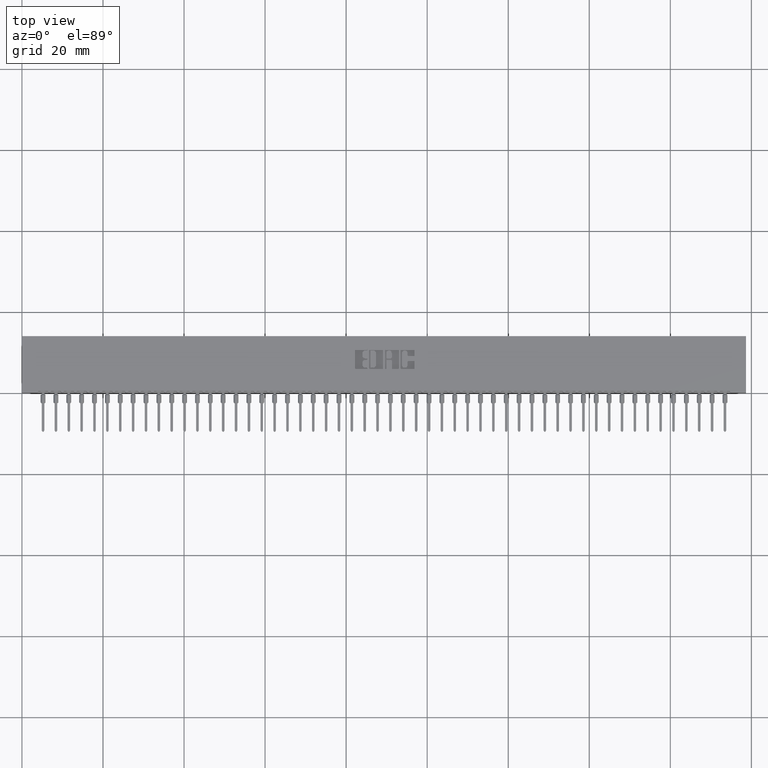
[diagram: clean part render]
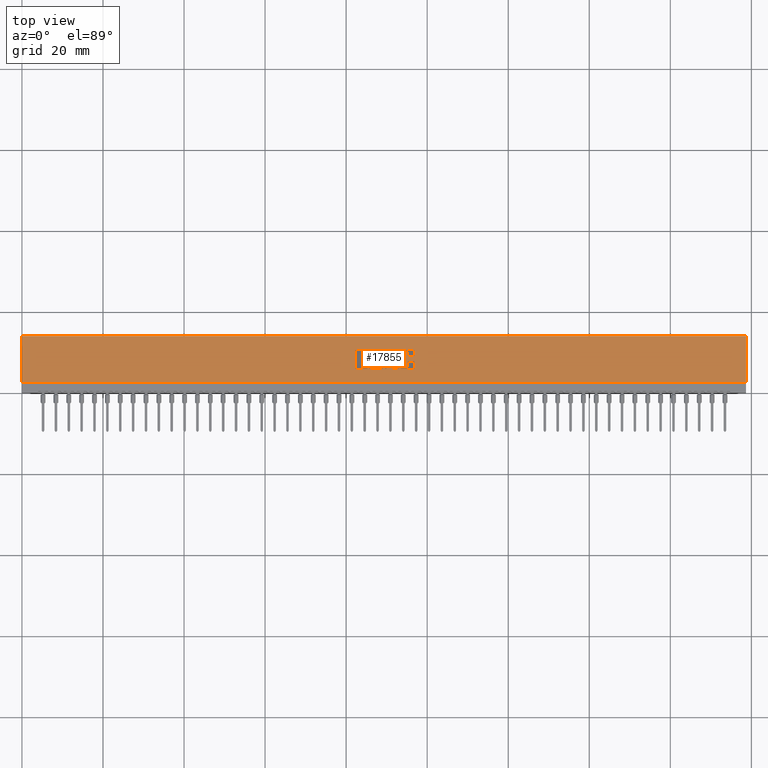
[diagram: same view with one face highlighted and labeled with its STEP entity id]
A machine part, top view. The second image highlights one B-rep face of the part: STEP entity #17855.
In plain terms, the highlighted planar face has unit normal (0, 0, -1).
Its self-contained STEP definition (entity closure, byte-faithful):
#5 = DIRECTION ( 'NONE',  ( 0.0000000000000000000, -1.000000000000000000, 0.0000000000000000000 ) ) ;
#48 = CIRCLE ( 'NONE', #55352, 0.009815670203803066735 ) ;
#378 = EDGE_LOOP ( 'NONE', ( #6448, #70563, #37187, #23038, #22471, #34751, #5128, #17313, #51471, #9866, #34154, #26303, #47491, #44251, #18702, #60147, #46249, #27492, #25547, #27397 ) ) ;
#688 = DIRECTION ( 'NONE',  ( 1.000000000000000000, 0.0000000000000000000, 0.0000000000000000000 ) ) ;
#783 = DIRECTION ( 'NONE',  ( -0.0000000000000000000, 0.0000000000000000000, 1.000000000000000000 ) ) ;
#806 = CARTESIAN_POINT ( 'NONE',  ( 0.0000000000000000000, 0.5500000000000000444, 0.0000000000000000000 ) ) ;
#1036 = CARTESIAN_POINT ( 'NONE',  ( 3.651729290037013520, 0.4231567020380067046, 0.0000000000000000000 ) ) ;
#1077 = ORIENTED_EDGE ( 'NONE', *, *, #31005, .F. ) ;
#1135 = CARTESIAN_POINT ( 'NONE',  ( 3.539830649713646693, 0.0000000000000000000, 0.0000000000000000000 ) ) ;
#1167 = EDGE_CURVE ( 'NONE', #9923, #64089, #6704, .T. ) ;
#1182 = CARTESIAN_POINT ( 'NONE',  ( 3.718721239177998239, 0.2668421540424530947, 0.0000000000000000000 ) ) ;
#1207 = CARTESIAN_POINT ( 'NONE',  ( 3.539830649713646693, 0.2337142671046480435, 0.0000000000000000000 ) ) ;
#1264 = EDGE_CURVE ( 'NONE', #9923, #18157, #38859, .T. ) ;
#1304 = ORIENTED_EDGE ( 'NONE', *, *, #1167, .T. ) ;
#1831 = DIRECTION ( 'NONE',  ( -0.0000000000000000000, 0.0000000000000000000, 1.000000000000000000 ) ) ;
#1995 = ORIENTED_EDGE ( 'NONE', *, *, #63247, .F. ) ;
#2234 = EDGE_CURVE ( 'NONE', #74896, #15088, #69660, .T. ) ;
#2339 = EDGE_CURVE ( 'NONE', #33087, #29295, #22384, .T. ) ;
#2422 = CARTESIAN_POINT ( 'NONE',  ( 3.305726915352909412, 0.3780046191005198564, 0.0000000000000000000 ) ) ;
#2976 = VERTEX_POINT ( 'NONE', #40756 ) ;
#2998 = EDGE_CURVE ( 'NONE', #46242, #23167, #54777, .T. ) ;
#3012 = CARTESIAN_POINT ( 'NONE',  ( 3.350633606535309283, 0.3250000000000204392, 0.0000000000000000000 ) ) ;
#3309 = CARTESIAN_POINT ( 'NONE',  ( 0.0000000000000000000, 0.4231567020380511135, 0.0000000000000000000 ) ) ;
#3438 = ORIENTED_EDGE ( 'NONE', *, *, #73607, .F. ) ;
#3608 = DIRECTION ( 'NONE',  ( -0.0000000000000000000, 0.0000000000000000000, 1.000000000000000000 ) ) ;
#3658 = CARTESIAN_POINT ( 'NONE',  ( 3.754793827176966303, 0.3063502266127576257, 0.0000000000000000000 ) ) ;
#3680 = LINE ( 'NONE', #72323, #32137 ) ;
#3728 = CARTESIAN_POINT ( 'NONE',  ( 3.532959680570987082, 0.2337142671046480435, 0.0000000000000000000 ) ) ;
#3749 = VECTOR ( 'NONE', #17202, 39.37007874015748143 ) ;
#3805 = DIRECTION ( 'NONE',  ( -1.000000000000000000, 0.0000000000000000000, 0.0000000000000000000 ) ) ;
#3812 = DIRECTION ( 'NONE',  ( -0.0000000000000000000, 0.0000000000000000000, 1.000000000000000000 ) ) ;
#4347 = EDGE_CURVE ( 'NONE', #40509, #70969, #16282, .T. ) ;
#4430 = DIRECTION ( 'NONE',  ( 1.000000000000000000, 0.0000000000000000000, 0.0000000000000000000 ) ) ;
#4467 = LINE ( 'NONE', #23437, #60704 ) ;
#4724 = DIRECTION ( 'NONE',  ( -0.0000000000000000000, 0.0000000000000000000, 1.000000000000000000 ) ) ;
#4761 = EDGE_CURVE ( 'NONE', #75561, #60055, #66432, .T. ) ;
#5033 = CARTESIAN_POINT ( 'NONE',  ( -0.0000000000000000000, 0.2268432979619832701, 0.0000000000000000000 ) ) ;
#5128 = ORIENTED_EDGE ( 'NONE', *, *, #40705, .T. ) ;
#5224 = AXIS2_PLACEMENT_3D ( 'NONE', #76274, #76672, #27368 ) ;
#5290 = DIRECTION ( 'NONE',  ( 1.000000000000000000, 0.0000000000000000000, 0.0000000000000000000 ) ) ;
#5296 = LINE ( 'NONE', #29551, #16733 ) ;
#6012 = VERTEX_POINT ( 'NONE', #8604 ) ;
#6180 = CIRCLE ( 'NONE', #75872, 0.009815670203822736764 ) ;
#6448 = ORIENTED_EDGE ( 'NONE', *, *, #11177, .F. ) ;
#6486 = CARTESIAN_POINT ( 'NONE',  ( 3.337137060005109124, 0.2405852362473086814, 0.0000000000000000000 ) ) ;
#6537 = DIRECTION ( 'NONE',  ( 1.000000000000000000, 0.0000000000000000000, 0.0000000000000000000 ) ) ;
#6563 = CIRCLE ( 'NONE', #49189, 0.02625691779518049898 ) ;
#6676 = CARTESIAN_POINT ( 'NONE',  ( 3.350633606415388321, 0.3181290308573568870, 0.0000000000000000000 ) ) ;
#6695 = VERTEX_POINT ( 'NONE', #54906 ) ;
#6704 = CIRCLE ( 'NONE', #49320, 0.03141014465218205237 ) ;
#6964 = CIRCLE ( 'NONE', #17295, 0.006870969142663458512 ) ;
#7046 = VERTEX_POINT ( 'NONE', #67327 ) ;
#7128 = ORIENTED_EDGE ( 'NONE', *, *, #55395, .F. ) ;
#7225 = EDGE_CURVE ( 'NONE', #60055, #63602, #69719, .T. ) ;
#7524 = ORIENTED_EDGE ( 'NONE', *, *, #67827, .T. ) ;
#7533 = CARTESIAN_POINT ( 'NONE',  ( -1.123269580619314073E-14, 0.3181290308572233827, 0.0000000000000000000 ) ) ;
#7577 = DIRECTION ( 'NONE',  ( -1.000000000000000000, 0.0000000000000000000, 0.0000000000000000000 ) ) ;
#7629 = DIRECTION ( 'NONE',  ( 1.000000000000000000, 0.0000000000000000000, 0.0000000000000000000 ) ) ;
#7653 = DIRECTION ( 'NONE',  ( 0.0000000000000000000, 0.0000000000000000000, -1.000000000000000000 ) ) ;
#7869 = VERTEX_POINT ( 'NONE', #31486 ) ;
#7908 = LINE ( 'NONE', #20833, #43171 ) ;
#7919 = ORIENTED_EDGE ( 'NONE', *, *, #61960, .F. ) ;
#8501 = DIRECTION ( 'NONE',  ( 1.000000000000000000, 0.0000000000000000000, 0.0000000000000000000 ) ) ;
#8604 = CARTESIAN_POINT ( 'NONE',  ( 3.508911288571669118, 0.4133410318342102263, 0.0000000000000000000 ) ) ;
#8771 = LINE ( 'NONE', #33410, #36490 ) ;
#8829 = EDGE_CURVE ( 'NONE', #74377, #19943, #33435, .T. ) ;
#9124 = VERTEX_POINT ( 'NONE', #69170 ) ;
#9257 = CARTESIAN_POINT ( 'NONE',  ( 3.499095618367861427, 0.2366589681657900179, 0.0000000000000000000 ) ) ;
#9355 = ORIENTED_EDGE ( 'NONE', *, *, #77412, .F. ) ;
#9420 = DIRECTION ( 'NONE',  ( 0.0000000000000000000, -1.000000000000000000, 0.0000000000000000000 ) ) ;
#9477 = ORIENTED_EDGE ( 'NONE', *, *, #49377, .T. ) ;
#9557 = CARTESIAN_POINT ( 'NONE',  ( 3.814178631909939998, 0.2965345564089705288, 0.0000000000000000000 ) ) ;
#9832 = CARTESIAN_POINT ( 'NONE',  ( 3.804362961706156288, 0.3063502266127576257, 0.0000000000000000000 ) ) ;
#9866 = ORIENTED_EDGE ( 'NONE', *, *, #73575, .F. ) ;
#9923 = VERTEX_POINT ( 'NONE', #38290 ) ;
#10145 = CARTESIAN_POINT ( 'NONE',  ( 3.692464321382818326, 0.3831578459575297191, 0.0000000000000000000 ) ) ;
#10219 = EDGE_CURVE ( 'NONE', #63602, #38700, #48, .T. ) ;
#10605 = LINE ( 'NONE', #15493, #32599 ) ;
#10615 = EDGE_CURVE ( 'NONE', #54260, #35055, #5296, .T. ) ;
#10839 = VECTOR ( 'NONE', #52681, 39.37007874015748143 ) ;
#10859 = DIRECTION ( 'NONE',  ( -0.0000000000000000000, 0.0000000000000000000, 1.000000000000000000 ) ) ;
#10901 = CIRCLE ( 'NONE', #58654, 0.02625691779517394173 ) ;
#10927 = ORIENTED_EDGE ( 'NONE', *, *, #7225, .T. ) ;
#11177 = EDGE_CURVE ( 'NONE', #35342, #15219, #72298, .T. ) ;
#11428 = DIRECTION ( 'NONE',  ( -0.0000000000000000000, 0.0000000000000000000, 1.000000000000000000 ) ) ;
#11808 = DIRECTION ( 'NONE',  ( 0.0000000000000000000, 1.000000000000000000, -0.0000000000000000000 ) ) ;
#12037 = VERTEX_POINT ( 'NONE', #42779 ) ;
#12190 = DIRECTION ( 'NONE',  ( -0.0000000000000000000, 0.0000000000000000000, 1.000000000000000000 ) ) ;
#12375 = CIRCLE ( 'NONE', #26558, 0.009815670203806345362 ) ;
#12604 = CARTESIAN_POINT ( 'NONE',  ( 3.814178631909939998, 0.0000000000000000000, 0.0000000000000000000 ) ) ;
#12865 = VECTOR ( 'NONE', #29581, 39.37007874015748143 ) ;
#13029 = CIRCLE ( 'NONE', #38869, 0.009815670203840767480 ) ;
#13093 = ORIENTED_EDGE ( 'NONE', *, *, #79467, .T. ) ;
#13205 = VECTOR ( 'NONE', #3805, 39.37007874015748143 ) ;
#14707 = DIRECTION ( 'NONE',  ( 1.000000000000000000, 0.0000000000000000000, 0.0000000000000000000 ) ) ;
#14741 = CARTESIAN_POINT ( 'NONE',  ( 3.754793827176977405, 0.3637718973050452775, 0.0000000000000000000 ) ) ;
#14830 = ORIENTED_EDGE ( 'NONE', *, *, #40782, .F. ) ;
#15088 = VERTEX_POINT ( 'NONE', #70111 ) ;
#15219 = VERTEX_POINT ( 'NONE', #34565 ) ;
#15493 = CARTESIAN_POINT ( 'NONE',  ( 3.373455039759168717, 0.0000000000000000000, 0.0000000000000000000 ) ) ;
#15599 = CIRCLE ( 'NONE', #18200, 0.009815670203841313918 ) ;
#15791 = LINE ( 'NONE', #35545, #72250 ) ;
#15817 = VECTOR ( 'NONE', #53274, 39.37007874015748143 ) ;
#15949 = VERTEX_POINT ( 'NONE', #77897 ) ;
#15993 = VECTOR ( 'NONE', #19999, 39.37007874015748143 ) ;
#16170 = VERTEX_POINT ( 'NONE', #37060 ) ;
#16282 = CIRCLE ( 'NONE', #61422, 0.009815670203787768208 ) ;
#16344 = CARTESIAN_POINT ( 'NONE',  ( 3.350633606535351028, 0.4162857328953863401, 0.0000000000000000000 ) ) ;
#16568 = VECTOR ( 'NONE', #57586, 39.37007874015748143 ) ;
#16595 = ORIENTED_EDGE ( 'NONE', *, *, #32948, .F. ) ;
#16600 = VERTEX_POINT ( 'NONE', #41228 ) ;
#16733 = VECTOR ( 'NONE', #78841, 39.37007874015748143 ) ;
#17202 = DIRECTION ( 'NONE',  ( -1.000000000000000000, 0.0000000000000000000, 0.0000000000000000000 ) ) ;
#17295 = AXIS2_PLACEMENT_3D ( 'NONE', #22518, #4724, #77869 ) ;
#17313 = ORIENTED_EDGE ( 'NONE', *, *, #73366, .F. ) ;
#17331 = DIRECTION ( 'NONE',  ( -0.0000000000000000000, 0.0000000000000000000, 1.000000000000000000 ) ) ;
#17420 = CARTESIAN_POINT ( 'NONE',  ( 3.337137060005083811, 0.2867188862052006404, 0.0000000000000000000 ) ) ;
#17630 = EDGE_CURVE ( 'NONE', #38664, #33087, #15599, .T. ) ;
#17855 = ADVANCED_FACE ( 'NONE', ( #31907, #56151, #44819, #75535, #76326 ), #26635, .F. ) ;
#18106 = EDGE_LOOP ( 'NONE', ( #24759, #7919, #23442, #20512, #59001, #29990, #62484, #52910, #71367, #1304, #9355, #16595, #74095, #70202, #44654, #3438, #49818, #71996, #45523, #49879, #31287 ) ) ;
#18115 = DIRECTION ( 'NONE',  ( -0.0000000000000000000, 0.0000000000000000000, 1.000000000000000000 ) ) ;
#18157 = VERTEX_POINT ( 'NONE', #42333 ) ;
#18200 = AXIS2_PLACEMENT_3D ( 'NONE', #39737, #33670, #14707 ) ;
#18381 = LINE ( 'NONE', #19570, #48501 ) ;
#18683 = CARTESIAN_POINT ( 'NONE',  ( 3.508911288571669118, 0.0000000000000000000, 0.0000000000000000000 ) ) ;
#18702 = ORIENTED_EDGE ( 'NONE', *, *, #48968, .F. ) ;
#18944 = CARTESIAN_POINT ( 'NONE',  ( 3.236526440416115147, 0.4133410318342102263, 0.0000000000000000000 ) ) ;
#19119 = ORIENTED_EDGE ( 'NONE', *, *, #19910, .F. ) ;
#19144 = DIRECTION ( 'NONE',  ( -0.0000000000000000000, 0.0000000000000000000, 1.000000000000000000 ) ) ;
#19318 = DIRECTION ( 'NONE',  ( 1.000000000000000000, 0.0000000000000000000, 0.0000000000000000000 ) ) ;
#19339 = CARTESIAN_POINT ( 'NONE',  ( 3.499095618367896066, 0.4231567020380511135, 0.0000000000000000000 ) ) ;
#19492 = AXIS2_PLACEMENT_3D ( 'NONE', #62997, #62184, #7629 ) ;
#19570 = CARTESIAN_POINT ( 'NONE',  ( -0.0000000000000000000, 0.3181290308573568870, 0.0000000000000000000 ) ) ;
#19605 = LINE ( 'NONE', #79828, #76585 ) ;
#19910 = EDGE_CURVE ( 'NONE', #65887, #6695, #10605, .T. ) ;
#19943 = VERTEX_POINT ( 'NONE', #41092 ) ;
#19982 = CARTESIAN_POINT ( 'NONE',  ( 3.535904381632127169, 0.4231567020380067046, 0.0000000000000000000 ) ) ;
#19999 = DIRECTION ( 'NONE',  ( -0.0000000000000000000, -1.000000000000000000, -0.0000000000000000000 ) ) ;
#20043 = DIRECTION ( 'NONE',  ( -0.0000000000000000000, 0.0000000000000000000, 1.000000000000000000 ) ) ;
#20049 = VERTEX_POINT ( 'NONE', #65335 ) ;
#20158 = CARTESIAN_POINT ( 'NONE',  ( 7.034999999999999254, 0.1000000000000000056, 0.0000000000000000000 ) ) ;
#20197 = DIRECTION ( 'NONE',  ( -1.000000000000000000, 0.0000000000000000000, -0.0000000000000000000 ) ) ;
#20318 = CARTESIAN_POINT ( 'NONE',  ( 0.0000000000000000000, 0.5500000000000000444, 0.0000000000000000000 ) ) ;
#20383 = CARTESIAN_POINT ( 'NONE',  ( 3.508911288571669118, 0.2366589681657900179, 0.0000000000000000000 ) ) ;
#20449 = LINE ( 'NONE', #32165, #16568 ) ;
#20512 = ORIENTED_EDGE ( 'NONE', *, *, #54926, .F. ) ;
#20767 = EDGE_CURVE ( 'NONE', #42810, #16600, #36564, .T. ) ;
#20833 = CARTESIAN_POINT ( 'NONE',  ( -2.860952991545873611E-14, 0.2405852362469118599, 0.0000000000000000000 ) ) ;
#20834 = VERTEX_POINT ( 'NONE', #27479 ) ;
#20926 = DIRECTION ( 'NONE',  ( 1.000000000000000000, 0.0000000000000000000, 0.0000000000000000000 ) ) ;
#21063 = CARTESIAN_POINT ( 'NONE',  ( 3.744978156973178596, 0.2668421540424530947, 0.0000000000000000000 ) ) ;
#21101 = CARTESIAN_POINT ( 'NONE',  ( 3.499095618367827676, 0.4133410318342100598, 0.0000000000000000000 ) ) ;
#21195 = CARTESIAN_POINT ( 'NONE',  ( 0.0000000000000000000, 0.3318709691426839914, 0.0000000000000000000 ) ) ;
#21272 = CARTESIAN_POINT ( 'NONE',  ( 3.539830649713646693, 0.3083133606535456428, 0.0000000000000000000 ) ) ;
#21408 = CARTESIAN_POINT ( 'NONE',  ( 3.383270709962975964, 0.2268432979619832701, 0.0000000000000000000 ) ) ;
#21500 = DIRECTION ( 'NONE',  ( -0.0000000000000000000, 0.0000000000000000000, 1.000000000000000000 ) ) ;
#21720 = CARTESIAN_POINT ( 'NONE',  ( 3.305726915352909412, 0.0000000000000000000, 0.0000000000000000000 ) ) ;
#21761 = DIRECTION ( 'NONE',  ( -0.0000000000000000000, 0.0000000000000000000, 1.000000000000000000 ) ) ;
#22189 = CARTESIAN_POINT ( 'NONE',  ( 3.744978156973178596, 0.0000000000000000000, 0.0000000000000000000 ) ) ;
#22295 = EDGE_CURVE ( 'NONE', #66330, #35055, #10901, .T. ) ;
#22332 = EDGE_CURVE ( 'NONE', #27212, #73745, #36832, .T. ) ;
#22376 = EDGE_CURVE ( 'NONE', #59761, #74319, #71570, .T. ) ;
#22384 = LINE ( 'NONE', #47807, #10839 ) ;
#22430 = VERTEX_POINT ( 'NONE', #33566 ) ;
#22442 = VERTEX_POINT ( 'NONE', #21063 ) ;
#22471 = ORIENTED_EDGE ( 'NONE', *, *, #22295, .T. ) ;
#22518 = CARTESIAN_POINT ( 'NONE',  ( 3.350633606535309283, 0.3250000000000204392, 0.0000000000000000000 ) ) ;
#22596 = AXIS2_PLACEMENT_3D ( 'NONE', #73076, #41578, #4430 ) ;
#22724 = EDGE_CURVE ( 'NONE', #73745, #49764, #40656, .T. ) ;
#22784 = CARTESIAN_POINT ( 'NONE',  ( 3.744978156973165717, 0.3637718973050452775, 0.0000000000000000000 ) ) ;
#23038 = ORIENTED_EDGE ( 'NONE', *, *, #37954, .F. ) ;
#23167 = VERTEX_POINT ( 'NONE', #20383 ) ;
#23253 = DIRECTION ( 'NONE',  ( -1.000000000000000000, 0.0000000000000000000, 0.0000000000000000000 ) ) ;
#23350 = VERTEX_POINT ( 'NONE', #53042 ) ;
#23437 = CARTESIAN_POINT ( 'NONE',  ( 7.034999999999999254, 0.1000000000000000056, 0.0000000000000000000 ) ) ;
#23442 = ORIENTED_EDGE ( 'NONE', *, *, #77316, .T. ) ;
#23722 = VERTEX_POINT ( 'NONE', #18944 ) ;
#23738 = ORIENTED_EDGE ( 'NONE', *, *, #70287, .F. ) ;
#24208 = CARTESIAN_POINT ( 'NONE',  ( -1.634053534411877129E-15, 0.2268432979619616485, 0.0000000000000000000 ) ) ;
#24346 = CIRCLE ( 'NONE', #70753, 0.009815670203811809741 ) ;
#24721 = CARTESIAN_POINT ( 'NONE',  ( 3.651729290037011300, 0.4133410318342105039, 0.0000000000000000000 ) ) ;
#24759 = ORIENTED_EDGE ( 'NONE', *, *, #61608, .T. ) ;
#25123 = DIRECTION ( 'NONE',  ( 0.0000000000000000000, 1.000000000000000000, -0.0000000000000000000 ) ) ;
#25224 = ORIENTED_EDGE ( 'NONE', *, *, #27889, .F. ) ;
#25344 = AXIS2_PLACEMENT_3D ( 'NONE', #76281, #60368, #65239 ) ;
#25481 = CIRCLE ( 'NONE', #29326, 0.006870969142648706424 ) ;
#25547 = ORIENTED_EDGE ( 'NONE', *, *, #53757, .F. ) ;
#26023 = DIRECTION ( 'NONE',  ( 1.000000000000000000, 0.0000000000000000000, 0.0000000000000000000 ) ) ;
#26169 = DIRECTION ( 'NONE',  ( -0.0000000000000000000, 0.0000000000000000000, 1.000000000000000000 ) ) ;
#26303 = ORIENTED_EDGE ( 'NONE', *, *, #22332, .F. ) ;
#26457 = DIRECTION ( 'NONE',  ( 1.000000000000000000, 0.0000000000000000000, 0.0000000000000000000 ) ) ;
#26480 = DIRECTION ( 'NONE',  ( 1.000000000000000000, 0.0000000000000000000, 0.0000000000000000000 ) ) ;
#26520 = EDGE_CURVE ( 'NONE', #6012, #65765, #65396, .T. ) ;
#26558 = AXIS2_PLACEMENT_3D ( 'NONE', #68569, #26169, #50807 ) ;
#26576 = CARTESIAN_POINT ( 'NONE',  ( -0.0000000000000000000, 0.3539562271012337002, 0.0000000000000000000 ) ) ;
#26635 = PLANE ( 'NONE',  #42682 ) ;
#26886 = CARTESIAN_POINT ( 'NONE',  ( 3.337137060005083811, 0.3632811137948584457, 0.0000000000000000000 ) ) ;
#26960 = LINE ( 'NONE', #62940, #44226 ) ;
#27212 = VERTEX_POINT ( 'NONE', #69666 ) ;
#27235 = LINE ( 'NONE', #21195, #78403 ) ;
#27368 = DIRECTION ( 'NONE',  ( 1.000000000000000000, 0.0000000000000000000, 0.0000000000000000000 ) ) ;
#27397 = ORIENTED_EDGE ( 'NONE', *, *, #42228, .F. ) ;
#27430 = AXIS2_PLACEMENT_3D ( 'NONE', #3728, #28369, #29150 ) ;
#27434 = EDGE_CURVE ( 'NONE', #22430, #2976, #69364, .T. ) ;
#27479 = CARTESIAN_POINT ( 'NONE',  ( 3.350633606535351028, 0.4231567020380327948, 0.0000000000000000000 ) ) ;
#27492 = ORIENTED_EDGE ( 'NONE', *, *, #74562, .F. ) ;
#27889 = EDGE_CURVE ( 'NONE', #27997, #35937, #20449, .T. ) ;
#27946 = DIRECTION ( 'NONE',  ( -1.000000000000000000, 0.0000000000000000000, 0.0000000000000000000 ) ) ;
#27997 = VERTEX_POINT ( 'NONE', #59576 ) ;
#28281 = DIRECTION ( 'NONE',  ( 1.000000000000000000, 0.0000000000000000000, 0.0000000000000000000 ) ) ;
#28369 = DIRECTION ( 'NONE',  ( -0.0000000000000000000, 0.0000000000000000000, 1.000000000000000000 ) ) ;
#28446 = DIRECTION ( 'NONE',  ( 1.000000000000000000, 0.0000000000000000000, 0.0000000000000000000 ) ) ;
#28593 = EDGE_CURVE ( 'NONE', #42878, #79837, #47565, .T. ) ;
#28698 = EDGE_CURVE ( 'NONE', #12037, #22430, #31555, .T. ) ;
#29150 = DIRECTION ( 'NONE',  ( 1.000000000000000000, 0.0000000000000000000, 0.0000000000000000000 ) ) ;
#29227 = LINE ( 'NONE', #59930, #31759 ) ;
#29295 = VERTEX_POINT ( 'NONE', #60775 ) ;
#29326 = AXIS2_PLACEMENT_3D ( 'NONE', #30843, #19144, #63935 ) ;
#29551 = CARTESIAN_POINT ( 'NONE',  ( 3.692464321382818326, 0.0000000000000000000, 0.0000000000000000000 ) ) ;
#29581 = DIRECTION ( 'NONE',  ( 0.0000000000000000000, 1.000000000000000000, -0.0000000000000000000 ) ) ;
#29640 = EDGE_CURVE ( 'NONE', #48774, #16600, #53025, .T. ) ;
#29777 = LINE ( 'NONE', #79087, #54289 ) ;
#29963 = EDGE_CURVE ( 'NONE', #68815, #48489, #15791, .T. ) ;
#29990 = ORIENTED_EDGE ( 'NONE', *, *, #8829, .F. ) ;
#30056 = DIRECTION ( 'NONE',  ( 1.000000000000000000, 0.0000000000000000000, 0.0000000000000000000 ) ) ;
#30557 = AXIS2_PLACEMENT_3D ( 'NONE', #21101, #64701, #51783 ) ;
#30779 = CARTESIAN_POINT ( 'NONE',  ( -0.0000000000000000000, 0.4231567020380067046, 0.0000000000000000000 ) ) ;
#30843 = CARTESIAN_POINT ( 'NONE',  ( 3.350633606535351028, 0.4162857328953863401, 0.0000000000000000000 ) ) ;
#31005 = EDGE_CURVE ( 'NONE', #23167, #6012, #67144, .T. ) ;
#31182 = DIRECTION ( 'NONE',  ( 1.000000000000000000, 0.0000000000000000000, 0.0000000000000000000 ) ) ;
#31287 = ORIENTED_EDGE ( 'NONE', *, *, #28698, .F. ) ;
#31486 = CARTESIAN_POINT ( 'NONE',  ( 3.305726915352909412, 0.3632811137948584457, 0.0000000000000000000 ) ) ;
#31501 = CARTESIAN_POINT ( 'NONE',  ( 3.602160155507785788, 0.2268432979619847134, 0.0000000000000000000 ) ) ;
#31555 = LINE ( 'NONE', #69511, #52768 ) ;
#31581 = LINE ( 'NONE', #30779, #78425 ) ;
#31759 = VECTOR ( 'NONE', #72837, 39.37007874015748143 ) ;
#31840 = EDGE_CURVE ( 'NONE', #61568, #46242, #41793, .T. ) ;
#31907 = FACE_BOUND ( 'NONE', #378, .T. ) ;
#32137 = VECTOR ( 'NONE', #5, 39.37007874015748143 ) ;
#32165 = CARTESIAN_POINT ( 'NONE',  ( 7.034999999999999254, 0.5500000000000000444, 0.0000000000000000000 ) ) ;
#32599 = VECTOR ( 'NONE', #9420, 39.37007874015748143 ) ;
#32671 = DIRECTION ( 'NONE',  ( 1.000000000000000000, 0.0000000000000000000, 0.0000000000000000000 ) ) ;
#32948 = EDGE_CURVE ( 'NONE', #48464, #56325, #35632, .T. ) ;
#33083 = CARTESIAN_POINT ( 'NONE',  ( 3.804362961706168278, 0.4231567020380511135, 0.0000000000000000000 ) ) ;
#33087 = VERTEX_POINT ( 'NONE', #66843 ) ;
#33272 = EDGE_CURVE ( 'NONE', #15949, #74377, #18381, .T. ) ;
#33277 = VECTOR ( 'NONE', #27946, 39.37007874015748143 ) ;
#33410 = CARTESIAN_POINT ( 'NONE',  ( 3.236526440416115147, 0.0000000000000000000, 0.0000000000000000000 ) ) ;
#33435 = CIRCLE ( 'NONE', #65690, 0.006870969142663458512 ) ;
#33481 = ORIENTED_EDGE ( 'NONE', *, *, #2234, .T. ) ;
#33566 = CARTESIAN_POINT ( 'NONE',  ( 3.350633606535351028, 0.4094147637527357775, 0.0000000000000000000 ) ) ;
#33670 = DIRECTION ( 'NONE',  ( -0.0000000000000000000, 0.0000000000000000000, 1.000000000000000000 ) ) ;
#34154 = ORIENTED_EDGE ( 'NONE', *, *, #22724, .F. ) ;
#34257 = CARTESIAN_POINT ( 'NONE',  ( 3.688538053301265052, 0.2366589681657900179, 0.0000000000000000000 ) ) ;
#34389 = CARTESIAN_POINT ( 'NONE',  ( 3.246342110619937937, 0.4231567020380327948, 0.0000000000000000000 ) ) ;
#34508 = LINE ( 'NONE', #59147, #13205 ) ;
#34548 = AXIS2_PLACEMENT_3D ( 'NONE', #16344, #47815, #46222 ) ;
#34565 = CARTESIAN_POINT ( 'NONE',  ( 3.814178631909971973, 0.3637718973050387272, 0.0000000000000000000 ) ) ;
#34581 = CIRCLE ( 'NONE', #68132, 0.009815670203795964777 ) ;
#34751 = ORIENTED_EDGE ( 'NONE', *, *, #10615, .F. ) ;
#34900 = VERTEX_POINT ( 'NONE', #34389 ) ;
#35047 = AXIS2_PLACEMENT_3D ( 'NONE', #48418, #17331, #66216 ) ;
#35055 = VERTEX_POINT ( 'NONE', #10145 ) ;
#35342 = VERTEX_POINT ( 'NONE', #70234 ) ;
#35444 = CIRCLE ( 'NONE', #22596, 0.009815670203803066735 ) ;
#35545 = CARTESIAN_POINT ( 'NONE',  ( -0.0000000000000000000, 0.2268432979619832701, 0.0000000000000000000 ) ) ;
#35632 = CIRCLE ( 'NONE', #61429, 0.006870969142662365636 ) ;
#35762 = CARTESIAN_POINT ( 'NONE',  ( 0.0000000000000000000, 0.4231567020380327948, 0.0000000000000000000 ) ) ;
#35937 = VERTEX_POINT ( 'NONE', #20158 ) ;
#35986 = CARTESIAN_POINT ( 'NONE',  ( 3.582528815100187725, 0.3181290308573498926, 0.0000000000000000000 ) ) ;
#36478 = ORIENTED_EDGE ( 'NONE', *, *, #73480, .T. ) ;
#36490 = VECTOR ( 'NONE', #58050, 39.37007874015748143 ) ;
#36564 = CIRCLE ( 'NONE', #74005, 0.009815670203796511215 ) ;
#36832 = LINE ( 'NONE', #12604, #50931 ) ;
#37060 = CARTESIAN_POINT ( 'NONE',  ( 3.350633606415414079, 0.2268432979619857959, 0.0000000000000000000 ) ) ;
#37187 = ORIENTED_EDGE ( 'NONE', *, *, #56049, .F. ) ;
#37390 = DIRECTION ( 'NONE',  ( 1.000000000000000000, 0.0000000000000000000, 0.0000000000000000000 ) ) ;
#37491 = LINE ( 'NONE', #1135, #38148 ) ;
#37887 = LINE ( 'NONE', #79527, #61008 ) ;
#37954 = EDGE_CURVE ( 'NONE', #66330, #72903, #3680, .T. ) ;
#38042 = DIRECTION ( 'NONE',  ( 1.000000000000000000, 0.0000000000000000000, 0.0000000000000000000 ) ) ;
#38148 = VECTOR ( 'NONE', #57257, 39.37007874015748143 ) ;
#38290 = CARTESIAN_POINT ( 'NONE',  ( 3.305726915352927175, 0.2719953808994904909, 0.0000000000000000000 ) ) ;
#38331 = VERTEX_POINT ( 'NONE', #33083 ) ;
#38664 = VERTEX_POINT ( 'NONE', #51580 ) ;
#38700 = VERTEX_POINT ( 'NONE', #21272 ) ;
#38851 = EDGE_CURVE ( 'NONE', #20834, #34900, #41040, .T. ) ;
#38859 = LINE ( 'NONE', #45306, #47986 ) ;
#38869 = AXIS2_PLACEMENT_3D ( 'NONE', #48812, #18115, #19318 ) ;
#39315 = CARTESIAN_POINT ( 'NONE',  ( 3.804362961706133639, 0.2268432979619832701, 0.0000000000000000000 ) ) ;
#39696 = DIRECTION ( 'NONE',  ( 1.000000000000000000, 0.0000000000000000000, 0.0000000000000000000 ) ) ;
#39737 = CARTESIAN_POINT ( 'NONE',  ( 3.688538053301299247, 0.4133410318342102263, 0.0000000000000000000 ) ) ;
#40463 = CIRCLE ( 'NONE', #79166, 0.006870969142662365636 ) ;
#40509 = VERTEX_POINT ( 'NONE', #3658 ) ;
#40656 = CIRCLE ( 'NONE', #62590, 0.009815670203787221770 ) ;
#40705 = EDGE_CURVE ( 'NONE', #54260, #22442, #6563, .T. ) ;
#40756 = CARTESIAN_POINT ( 'NONE',  ( 3.357504575677999537, 0.4162857328953863401, 0.0000000000000000000 ) ) ;
#40782 = EDGE_CURVE ( 'NONE', #6695, #61568, #43991, .T. ) ;
#41040 = LINE ( 'NONE', #35762, #3749 ) ;
#41092 = CARTESIAN_POINT ( 'NONE',  ( 3.357504575677972891, 0.3250000000000204392, 0.0000000000000000000 ) ) ;
#41228 = CARTESIAN_POINT ( 'NONE',  ( 3.526088711428330580, 0.4133410318342102263, 0.0000000000000000000 ) ) ;
#41578 = DIRECTION ( 'NONE',  ( -0.0000000000000000000, 0.0000000000000000000, 1.000000000000000000 ) ) ;
#41793 = LINE ( 'NONE', #5033, #61257 ) ;
#41877 = EDGE_CURVE ( 'NONE', #35937, #15088, #4467, .T. ) ;
#41916 = AXIS2_PLACEMENT_3D ( 'NONE', #75687, #71181, #39696 ) ;
#42126 = CARTESIAN_POINT ( 'NONE',  ( 3.337137060005109124, 0.2719953808994904909, 0.0000000000000000000 ) ) ;
#42228 = EDGE_CURVE ( 'NONE', #15219, #62072, #29777, .T. ) ;
#42333 = CARTESIAN_POINT ( 'NONE',  ( 3.305726915352927175, 0.2867188862052006404, 0.0000000000000000000 ) ) ;
#42537 = CARTESIAN_POINT ( 'NONE',  ( 3.549646319917449500, 0.3181290308573487269, 0.0000000000000000000 ) ) ;
#42682 = AXIS2_PLACEMENT_3D ( 'NONE', #806, #7653, #20197 ) ;
#42779 = CARTESIAN_POINT ( 'NONE',  ( 3.337137060005125111, 0.4094147637527357775, 0.0000000000000000000 ) ) ;
#42810 = VERTEX_POINT ( 'NONE', #19982 ) ;
#42878 = VERTEX_POINT ( 'NONE', #76923 ) ;
#42931 = DIRECTION ( 'NONE',  ( -0.0000000000000000000, 0.0000000000000000000, 1.000000000000000000 ) ) ;
#43061 = VECTOR ( 'NONE', #20926, 39.37007874015748143 ) ;
#43171 = VECTOR ( 'NONE', #45455, 39.37007874015748143 ) ;
#43708 = AXIS2_PLACEMENT_3D ( 'NONE', #75596, #56614, #8501 ) ;
#43732 = EDGE_LOOP ( 'NONE', ( #79917, #48772, #36478, #23738, #9477, #79378, #13093, #68795, #10927, #63413, #7524, #55359, #48552, #63482 ) ) ;
#43894 = VECTOR ( 'NONE', #60556, 39.37007874015748143 ) ;
#43991 = CIRCLE ( 'NONE', #19492, 0.009815670203806891800 ) ;
#44226 = VECTOR ( 'NONE', #7577, 39.37007874015748143 ) ;
#44237 = ORIENTED_EDGE ( 'NONE', *, *, #2998, .F. ) ;
#44251 = ORIENTED_EDGE ( 'NONE', *, *, #29963, .F. ) ;
#44654 = ORIENTED_EDGE ( 'NONE', *, *, #28593, .F. ) ;
#44819 = FACE_OUTER_BOUND ( 'NONE', #79060, .T. ) ;
#45258 = ORIENTED_EDGE ( 'NONE', *, *, #31840, .F. ) ;
#45263 = DIRECTION ( 'NONE',  ( 1.000000000000000000, 0.0000000000000000000, 0.0000000000000000000 ) ) ;
#45306 = CARTESIAN_POINT ( 'NONE',  ( 3.305726915352927175, 0.0000000000000000000, 0.0000000000000000000 ) ) ;
#45455 = DIRECTION ( 'NONE',  ( -1.000000000000000000, -1.189163988687022540E-13, 0.0000000000000000000 ) ) ;
#45523 = ORIENTED_EDGE ( 'NONE', *, *, #69886, .F. ) ;
#45778 = VERTEX_POINT ( 'NONE', #67819 ) ;
#46126 = CARTESIAN_POINT ( 'NONE',  ( 3.246342110619917953, 0.2268432979619850465, 0.0000000000000000000 ) ) ;
#46147 = CARTESIAN_POINT ( 'NONE',  ( 3.814178631909971973, 0.4133410318341949052, 0.0000000000000000000 ) ) ;
#46222 = DIRECTION ( 'NONE',  ( 1.000000000000000000, 0.0000000000000000000, 0.0000000000000000000 ) ) ;
#46242 = VERTEX_POINT ( 'NONE', #79071 ) ;
#46249 = ORIENTED_EDGE ( 'NONE', *, *, #17630, .F. ) ;
#46349 = LINE ( 'NONE', #26576, #43061 ) ;
#46527 = CARTESIAN_POINT ( 'NONE',  ( 3.688538053301265052, 0.2268432979619832701, 0.0000000000000000000 ) ) ;
#46991 = ORIENTED_EDGE ( 'NONE', *, *, #58830, .F. ) ;
#47491 = ORIENTED_EDGE ( 'NONE', *, *, #67856, .F. ) ;
#47565 = CIRCLE ( 'NONE', #43708, 0.009815670203805798924 ) ;
#47807 = CARTESIAN_POINT ( 'NONE',  ( 3.678722383097458248, 0.0000000000000000000, 0.0000000000000000000 ) ) ;
#47815 = DIRECTION ( 'NONE',  ( -0.0000000000000000000, 0.0000000000000000000, 1.000000000000000000 ) ) ;
#47986 = VECTOR ( 'NONE', #63897, 39.37007874015748143 ) ;
#48323 = AXIS2_PLACEMENT_3D ( 'NONE', #9257, #3608, #77553 ) ;
#48418 = CARTESIAN_POINT ( 'NONE',  ( 3.337137060005125111, 0.3780046191005198564, 0.0000000000000000000 ) ) ;
#48464 = VERTEX_POINT ( 'NONE', #69625 ) ;
#48489 = VERTEX_POINT ( 'NONE', #39315 ) ;
#48501 = VECTOR ( 'NONE', #26023, 39.37007874015748143 ) ;
#48552 = ORIENTED_EDGE ( 'NONE', *, *, #29640, .T. ) ;
#48585 = DIRECTION ( 'NONE',  ( 1.000000000000000000, 0.0000000000000000000, 0.0000000000000000000 ) ) ;
#48772 = ORIENTED_EDGE ( 'NONE', *, *, #22376, .F. ) ;
#48774 = VERTEX_POINT ( 'NONE', #65960 ) ;
#48812 = CARTESIAN_POINT ( 'NONE',  ( 3.383270709963009715, 0.4133410318342102263, 0.0000000000000000000 ) ) ;
#48930 = DIRECTION ( 'NONE',  ( -0.0000000000000000000, 0.0000000000000000000, 1.000000000000000000 ) ) ;
#48968 = EDGE_CURVE ( 'NONE', #29295, #68815, #58549, .T. ) ;
#49189 = AXIS2_PLACEMENT_3D ( 'NONE', #1182, #783, #56914 ) ;
#49320 = AXIS2_PLACEMENT_3D ( 'NONE', #42126, #11428, #48585 ) ;
#49376 = CARTESIAN_POINT ( 'NONE',  ( 3.651729290037010411, 0.2366589681657809419, 0.0000000000000000000 ) ) ;
#49377 = EDGE_CURVE ( 'NONE', #9124, #50544, #78603, .T. ) ;
#49434 = CARTESIAN_POINT ( 'NONE',  ( 3.549646319917449500, 0.3083133606535456428, 0.0000000000000000000 ) ) ;
#49469 = EDGE_LOOP ( 'NONE', ( #50733, #1077, #44237, #45258, #14830, #19119, #46991, #7128 ) ) ;
#49764 = VERTEX_POINT ( 'NONE', #9832 ) ;
#49771 = CARTESIAN_POINT ( 'NONE',  ( 3.718721239177991578, 0.3831578459575297191, 0.0000000000000000000 ) ) ;
#49818 = ORIENTED_EDGE ( 'NONE', *, *, #55458, .F. ) ;
#49879 = ORIENTED_EDGE ( 'NONE', *, *, #27434, .F. ) ;
#50544 = VERTEX_POINT ( 'NONE', #31501 ) ;
#50581 = VERTEX_POINT ( 'NONE', #1207 ) ;
#50733 = ORIENTED_EDGE ( 'NONE', *, *, #26520, .F. ) ;
#50807 = DIRECTION ( 'NONE',  ( 1.000000000000000000, 0.0000000000000000000, 0.0000000000000000000 ) ) ;
#50931 = VECTOR ( 'NONE', #25123, 39.37007874015748143 ) ;
#50956 = DIRECTION ( 'NONE',  ( 1.000000000000000000, 0.0000000000000000000, 0.0000000000000000000 ) ) ;
#51471 = ORIENTED_EDGE ( 'NONE', *, *, #4347, .F. ) ;
#51580 = CARTESIAN_POINT ( 'NONE',  ( 3.688538053301299247, 0.4231567020380511135, 0.0000000000000000000 ) ) ;
#51783 = DIRECTION ( 'NONE',  ( 1.000000000000000000, 0.0000000000000000000, 0.0000000000000000000 ) ) ;
#52681 = DIRECTION ( 'NONE',  ( 0.0000000000000000000, -1.000000000000000000, 0.0000000000000000000 ) ) ;
#52768 = VECTOR ( 'NONE', #45263, 39.37007874015748143 ) ;
#52898 = DIRECTION ( 'NONE',  ( 1.000000000000000000, 0.0000000000000000000, 0.0000000000000000000 ) ) ;
#52910 = ORIENTED_EDGE ( 'NONE', *, *, #61222, .T. ) ;
#52945 = DIRECTION ( 'NONE',  ( 1.000000000000000000, 0.0000000000000000000, 0.0000000000000000000 ) ) ;
#53025 = LINE ( 'NONE', #60283, #12865 ) ;
#53042 = CARTESIAN_POINT ( 'NONE',  ( 3.337137060005083811, 0.3318709691426839914, 0.0000000000000000000 ) ) ;
#53215 = CIRCLE ( 'NONE', #27430, 0.006870969142657995000 ) ;
#53274 = DIRECTION ( 'NONE',  ( 0.0000000000000000000, -1.000000000000000000, 0.0000000000000000000 ) ) ;
#53467 = DIRECTION ( 'NONE',  ( -1.000000000000000000, 0.0000000000000000000, 0.0000000000000000000 ) ) ;
#53757 = EDGE_CURVE ( 'NONE', #62072, #38331, #60150, .T. ) ;
#54260 = VERTEX_POINT ( 'NONE', #78477 ) ;
#54289 = VECTOR ( 'NONE', #72621, 39.37007874015748143 ) ;
#54727 = VECTOR ( 'NONE', #11808, 39.37007874015748143 ) ;
#54777 = CIRCLE ( 'NONE', #48323, 0.009815670203806891800 ) ;
#54906 = CARTESIAN_POINT ( 'NONE',  ( 3.373455039759168717, 0.2366589681657900179, 0.0000000000000000000 ) ) ;
#54926 = EDGE_CURVE ( 'NONE', #55995, #23350, #27235, .T. ) ;
#54927 = DIRECTION ( 'NONE',  ( -1.000000000000000000, -0.0000000000000000000, -0.0000000000000000000 ) ) ;
#55352 = AXIS2_PLACEMENT_3D ( 'NONE', #49434, #74070, #61955 ) ;
#55359 = ORIENTED_EDGE ( 'NONE', *, *, #62302, .F. ) ;
#55395 = EDGE_CURVE ( 'NONE', #65765, #45778, #64313, .T. ) ;
#55458 = EDGE_CURVE ( 'NONE', #34900, #23722, #6180, .T. ) ;
#55995 = VERTEX_POINT ( 'NONE', #73452 ) ;
#56021 = AXIS2_PLACEMENT_3D ( 'NONE', #34257, #21761, #71821 ) ;
#56030 = DIRECTION ( 'NONE',  ( -0.0000000000000000000, 0.0000000000000000000, 1.000000000000000000 ) ) ;
#56049 = EDGE_CURVE ( 'NONE', #72903, #69154, #24346, .T. ) ;
#56151 = FACE_BOUND ( 'NONE', #18106, .T. ) ;
#56325 = VERTEX_POINT ( 'NONE', #67993 ) ;
#56614 = DIRECTION ( 'NONE',  ( -0.0000000000000000000, 0.0000000000000000000, 1.000000000000000000 ) ) ;
#56633 = DIRECTION ( 'NONE',  ( -0.0000000000000000000, 0.0000000000000000000, 1.000000000000000000 ) ) ;
#56849 = ORIENTED_EDGE ( 'NONE', *, *, #41877, .F. ) ;
#56914 = DIRECTION ( 'NONE',  ( 1.000000000000000000, 0.0000000000000000000, 0.0000000000000000000 ) ) ;
#57257 = DIRECTION ( 'NONE',  ( 0.0000000000000000000, -1.000000000000000000, 0.0000000000000000000 ) ) ;
#57586 = DIRECTION ( 'NONE',  ( -0.0000000000000000000, -1.000000000000000000, -0.0000000000000000000 ) ) ;
#57620 = CARTESIAN_POINT ( 'NONE',  ( 3.804362961706152735, 0.2965345564089705288, 0.0000000000000000000 ) ) ;
#58050 = DIRECTION ( 'NONE',  ( 0.0000000000000000000, -1.000000000000000000, 0.0000000000000000000 ) ) ;
#58063 = CARTESIAN_POINT ( 'NONE',  ( 3.373455039759168717, 0.4133410318342102263, 0.0000000000000000000 ) ) ;
#58283 = AXIS2_PLACEMENT_3D ( 'NONE', #17420, #48930, #5290 ) ;
#58322 = EDGE_CURVE ( 'NONE', #79837, #16170, #67011, .T. ) ;
#58549 = CIRCLE ( 'NONE', #56021, 0.009815670203806891800 ) ;
#58654 = AXIS2_PLACEMENT_3D ( 'NONE', #49771, #12190, #50956 ) ;
#58712 = AXIS2_PLACEMENT_3D ( 'NONE', #24721, #56633, #6537 ) ;
#58830 = EDGE_CURVE ( 'NONE', #45778, #65887, #13029, .T. ) ;
#59001 = ORIENTED_EDGE ( 'NONE', *, *, #77057, .F. ) ;
#59147 = CARTESIAN_POINT ( 'NONE',  ( 0.0000000000000000000, 0.4231567020380511135, 0.0000000000000000000 ) ) ;
#59576 = CARTESIAN_POINT ( 'NONE',  ( 7.034999999999999254, 0.5500000000000000444, 0.0000000000000000000 ) ) ;
#59610 = CARTESIAN_POINT ( 'NONE',  ( 0.0000000000000000000, 0.2268432979619847134, 0.0000000000000000000 ) ) ;
#59714 = CARTESIAN_POINT ( 'NONE',  ( 3.744978156973178596, 0.2965345564089687525, 0.0000000000000000000 ) ) ;
#59761 = VERTEX_POINT ( 'NONE', #63522 ) ;
#59930 = CARTESIAN_POINT ( 'NONE',  ( 3.592344485303984758, 0.0000000000000000000, 0.0000000000000000000 ) ) ;
#60055 = VERTEX_POINT ( 'NONE', #35986 ) ;
#60147 = ORIENTED_EDGE ( 'NONE', *, *, #2339, .F. ) ;
#60150 = CIRCLE ( 'NONE', #25344, 0.009815670203840221042 ) ;
#60283 = CARTESIAN_POINT ( 'NONE',  ( 3.526088711428330580, 0.0000000000000000000, 0.0000000000000000000 ) ) ;
#60368 = DIRECTION ( 'NONE',  ( -0.0000000000000000000, 0.0000000000000000000, 1.000000000000000000 ) ) ;
#60556 = DIRECTION ( 'NONE',  ( 1.000000000000000000, 7.203446383881635636E-15, 0.0000000000000000000 ) ) ;
#60704 = VECTOR ( 'NONE', #54927, 39.37007874015748143 ) ;
#60775 = CARTESIAN_POINT ( 'NONE',  ( 3.678722383097458248, 0.2366589681657900179, 0.0000000000000000000 ) ) ;
#61008 = VECTOR ( 'NONE', #74664, 39.37007874015748143 ) ;
#61222 = EDGE_CURVE ( 'NONE', #15949, #18157, #62162, .T. ) ;
#61257 = VECTOR ( 'NONE', #30056, 39.37007874015748143 ) ;
#61422 = AXIS2_PLACEMENT_3D ( 'NONE', #66212, #10859, #52898 ) ;
#61429 = AXIS2_PLACEMENT_3D ( 'NONE', #76307, #63382, #32671 ) ;
#61568 = VERTEX_POINT ( 'NONE', #21408 ) ;
#61608 = EDGE_CURVE ( 'NONE', #12037, #67520, #69864, .T. ) ;
#61751 = CARTESIAN_POINT ( 'NONE',  ( 3.592344485303984758, 0.3083133606535435334, 0.0000000000000000000 ) ) ;
#61955 = DIRECTION ( 'NONE',  ( 1.000000000000000000, 0.0000000000000000000, 0.0000000000000000000 ) ) ;
#61960 = EDGE_CURVE ( 'NONE', #7869, #67520, #77076, .T. ) ;
#62072 = VERTEX_POINT ( 'NONE', #46147 ) ;
#62162 = CIRCLE ( 'NONE', #58283, 0.03141014465215637153 ) ;
#62184 = DIRECTION ( 'NONE',  ( -0.0000000000000000000, 0.0000000000000000000, 1.000000000000000000 ) ) ;
#62302 = EDGE_CURVE ( 'NONE', #48774, #50581, #53215, .T. ) ;
#62484 = ORIENTED_EDGE ( 'NONE', *, *, #33272, .F. ) ;
#62590 = AXIS2_PLACEMENT_3D ( 'NONE', #57620, #56030, #688 ) ;
#62940 = CARTESIAN_POINT ( 'NONE',  ( 0.0000000000000000000, 0.3063502266127576257, 0.0000000000000000000 ) ) ;
#62997 = CARTESIAN_POINT ( 'NONE',  ( 3.383270709962975964, 0.2366589681657900179, 0.0000000000000000000 ) ) ;
#63247 = EDGE_CURVE ( 'NONE', #74896, #27997, #19605, .T. ) ;
#63382 = DIRECTION ( 'NONE',  ( -0.0000000000000000000, 0.0000000000000000000, 1.000000000000000000 ) ) ;
#63413 = ORIENTED_EDGE ( 'NONE', *, *, #10219, .T. ) ;
#63482 = ORIENTED_EDGE ( 'NONE', *, *, #20767, .F. ) ;
#63522 = CARTESIAN_POINT ( 'NONE',  ( 3.661544960240806112, 0.4133410318342010670, 0.0000000000000000000 ) ) ;
#63602 = VERTEX_POINT ( 'NONE', #42537 ) ;
#63676 = EDGE_CURVE ( 'NONE', #16170, #48464, #40463, .T. ) ;
#63897 = DIRECTION ( 'NONE',  ( 0.0000000000000000000, 1.000000000000000000, -0.0000000000000000000 ) ) ;
#63935 = DIRECTION ( 'NONE',  ( 1.000000000000000000, 0.0000000000000000000, 0.0000000000000000000 ) ) ;
#64089 = VERTEX_POINT ( 'NONE', #6486 ) ;
#64313 = LINE ( 'NONE', #3309, #33277 ) ;
#64701 = DIRECTION ( 'NONE',  ( -0.0000000000000000000, 0.0000000000000000000, 1.000000000000000000 ) ) ;
#65239 = DIRECTION ( 'NONE',  ( 1.000000000000000000, 0.0000000000000000000, 0.0000000000000000000 ) ) ;
#65335 = CARTESIAN_POINT ( 'NONE',  ( 3.661544960240806112, 0.2366589681657809419, 0.0000000000000000000 ) ) ;
#65396 = CIRCLE ( 'NONE', #30557, 0.009815670203841313918 ) ;
#65690 = AXIS2_PLACEMENT_3D ( 'NONE', #3012, #3812, #28446 ) ;
#65765 = VERTEX_POINT ( 'NONE', #19339 ) ;
#65887 = VERTEX_POINT ( 'NONE', #58063 ) ;
#65960 = CARTESIAN_POINT ( 'NONE',  ( 3.526088711428330580, 0.2337142671046480435, 0.0000000000000000000 ) ) ;
#66199 = LINE ( 'NONE', #22189, #15817 ) ;
#66212 = CARTESIAN_POINT ( 'NONE',  ( 3.754793827176966303, 0.2965345564089696406, 0.0000000000000000000 ) ) ;
#66216 = DIRECTION ( 'NONE',  ( 1.000000000000000000, 0.0000000000000000000, 0.0000000000000000000 ) ) ;
#66330 = VERTEX_POINT ( 'NONE', #71039 ) ;
#66432 = CIRCLE ( 'NONE', #41916, 0.009815670203797057652 ) ;
#66843 = CARTESIAN_POINT ( 'NONE',  ( 3.678722383097458248, 0.4133410318342102263, 0.0000000000000000000 ) ) ;
#67011 = LINE ( 'NONE', #24208, #43894 ) ;
#67144 = LINE ( 'NONE', #18683, #54727 ) ;
#67327 = CARTESIAN_POINT ( 'NONE',  ( 3.592344485303984758, 0.2366589681657879085, 0.0000000000000000000 ) ) ;
#67520 = VERTEX_POINT ( 'NONE', #2422 ) ;
#67564 = DIRECTION ( 'NONE',  ( 1.000000000000000000, 0.0000000000000000000, 0.0000000000000000000 ) ) ;
#67678 = AXIS2_PLACEMENT_3D ( 'NONE', #26886, #20043, #26480 ) ;
#67819 = CARTESIAN_POINT ( 'NONE',  ( 3.383270709963009715, 0.4231567020380511135, 0.0000000000000000000 ) ) ;
#67827 = EDGE_CURVE ( 'NONE', #38700, #50581, #37491, .T. ) ;
#67856 = EDGE_CURVE ( 'NONE', #48489, #27212, #12375, .T. ) ;
#67993 = CARTESIAN_POINT ( 'NONE',  ( 3.350633606415414079, 0.2405852362473102912, 0.0000000000000000000 ) ) ;
#68132 = AXIS2_PLACEMENT_3D ( 'NONE', #49376, #68338, #38042 ) ;
#68338 = DIRECTION ( 'NONE',  ( -0.0000000000000000000, 0.0000000000000000000, 1.000000000000000000 ) ) ;
#68569 = CARTESIAN_POINT ( 'NONE',  ( 3.804362961706133639, 0.2366589681657900179, 0.0000000000000000000 ) ) ;
#68758 = CARTESIAN_POINT ( 'NONE',  ( 3.350633606535335041, 0.2337142671046480435, 0.0000000000000000000 ) ) ;
#68795 = ORIENTED_EDGE ( 'NONE', *, *, #4761, .T. ) ;
#68815 = VERTEX_POINT ( 'NONE', #46527 ) ;
#68920 = DIRECTION ( 'NONE',  ( -1.000000000000000000, -3.530861605407645268E-14, 0.0000000000000000000 ) ) ;
#69154 = VERTEX_POINT ( 'NONE', #71775 ) ;
#69170 = CARTESIAN_POINT ( 'NONE',  ( 3.651729290037010411, 0.2268432979619847134, 0.0000000000000000000 ) ) ;
#69364 = CIRCLE ( 'NONE', #34548, 0.006870969142648706424 ) ;
#69511 = CARTESIAN_POINT ( 'NONE',  ( -0.0000000000000000000, 0.4094147637527357775, 0.0000000000000000000 ) ) ;
#69625 = CARTESIAN_POINT ( 'NONE',  ( 3.357504575677997316, 0.2337142671046480435, 0.0000000000000000000 ) ) ;
#69660 = LINE ( 'NONE', #75341, #15993 ) ;
#69666 = CARTESIAN_POINT ( 'NONE',  ( 3.814178631909939998, 0.2366589681657830513, 0.0000000000000000000 ) ) ;
#69719 = LINE ( 'NONE', #7533, #77120 ) ;
#69864 = CIRCLE ( 'NONE', #35047, 0.03141014465221592805 ) ;
#69886 = EDGE_CURVE ( 'NONE', #2976, #20834, #25481, .T. ) ;
#70111 = CARTESIAN_POINT ( 'NONE',  ( 0.0000000000000000000, 0.1000000000000000056, 0.0000000000000000000 ) ) ;
#70183 = VECTOR ( 'NONE', #23253, 39.37007874015748143 ) ;
#70202 = ORIENTED_EDGE ( 'NONE', *, *, #58322, .F. ) ;
#70217 = EDGE_CURVE ( 'NONE', #42810, #74319, #31581, .T. ) ;
#70234 = CARTESIAN_POINT ( 'NONE',  ( 3.804362961706166502, 0.3539562271012335337, 0.0000000000000000000 ) ) ;
#70287 = EDGE_CURVE ( 'NONE', #9124, #20049, #34581, .T. ) ;
#70563 = ORIENTED_EDGE ( 'NONE', *, *, #76916, .F. ) ;
#70698 = DIRECTION ( 'NONE',  ( -0.0000000000000000000, 0.0000000000000000000, 1.000000000000000000 ) ) ;
#70753 = AXIS2_PLACEMENT_3D ( 'NONE', #14741, #1831, #26457 ) ;
#70969 = VERTEX_POINT ( 'NONE', #59714 ) ;
#70979 = DIRECTION ( 'NONE',  ( 0.0000000000000000000, 1.000000000000000000, -0.0000000000000000000 ) ) ;
#71039 = CARTESIAN_POINT ( 'NONE',  ( 3.744978156973165717, 0.3831578454992600191, 0.0000000000000000000 ) ) ;
#71153 = DIRECTION ( 'NONE',  ( 1.000000000000000000, 0.0000000000000000000, 0.0000000000000000000 ) ) ;
#71181 = DIRECTION ( 'NONE',  ( -0.0000000000000000000, 0.0000000000000000000, 1.000000000000000000 ) ) ;
#71255 = VECTOR ( 'NONE', #70979, 39.37007874015748143 ) ;
#71367 = ORIENTED_EDGE ( 'NONE', *, *, #1264, .F. ) ;
#71570 = CIRCLE ( 'NONE', #58712, 0.009815670203795418339 ) ;
#71775 = CARTESIAN_POINT ( 'NONE',  ( 3.754793827176977405, 0.3539562271012337002, 0.0000000000000000000 ) ) ;
#71821 = DIRECTION ( 'NONE',  ( 1.000000000000000000, 0.0000000000000000000, 0.0000000000000000000 ) ) ;
#71996 = ORIENTED_EDGE ( 'NONE', *, *, #38851, .F. ) ;
#72250 = VECTOR ( 'NONE', #52945, 39.37007874015748143 ) ;
#72298 = CIRCLE ( 'NONE', #5224, 0.009815670203805252486 ) ;
#72323 = CARTESIAN_POINT ( 'NONE',  ( 3.744978156973165717, 0.0000000000000000000, 0.0000000000000000000 ) ) ;
#72621 = DIRECTION ( 'NONE',  ( 0.0000000000000000000, 1.000000000000000000, -0.0000000000000000000 ) ) ;
#72837 = DIRECTION ( 'NONE',  ( 0.0000000000000000000, 1.000000000000000000, -0.0000000000000000000 ) ) ;
#72903 = VERTEX_POINT ( 'NONE', #22784 ) ;
#73076 = CARTESIAN_POINT ( 'NONE',  ( 3.602160155507787564, 0.2366589681657879085, 0.0000000000000000000 ) ) ;
#73366 = EDGE_CURVE ( 'NONE', #70969, #22442, #66199, .T. ) ;
#73452 = CARTESIAN_POINT ( 'NONE',  ( 3.350633606535309283, 0.3318709691426839914, 0.0000000000000000000 ) ) ;
#73480 = EDGE_CURVE ( 'NONE', #59761, #20049, #37887, .T. ) ;
#73575 = EDGE_CURVE ( 'NONE', #49764, #40509, #26960, .T. ) ;
#73607 = EDGE_CURVE ( 'NONE', #23722, #42878, #8771, .T. ) ;
#73745 = VERTEX_POINT ( 'NONE', #9557 ) ;
#74005 = AXIS2_PLACEMENT_3D ( 'NONE', #76779, #70698, #28281 ) ;
#74070 = DIRECTION ( 'NONE',  ( -0.0000000000000000000, 0.0000000000000000000, 1.000000000000000000 ) ) ;
#74095 = ORIENTED_EDGE ( 'NONE', *, *, #63676, .F. ) ;
#74319 = VERTEX_POINT ( 'NONE', #1036 ) ;
#74377 = VERTEX_POINT ( 'NONE', #6676 ) ;
#74562 = EDGE_CURVE ( 'NONE', #38331, #38664, #34508, .T. ) ;
#74664 = DIRECTION ( 'NONE',  ( 0.0000000000000000000, -1.000000000000000000, 0.0000000000000000000 ) ) ;
#74896 = VERTEX_POINT ( 'NONE', #20318 ) ;
#75341 = CARTESIAN_POINT ( 'NONE',  ( 0.0000000000000000000, 0.5500000000000000444, 0.0000000000000000000 ) ) ;
#75434 = CIRCLE ( 'NONE', #67678, 0.03141014465217440571 ) ;
#75535 = FACE_BOUND ( 'NONE', #49469, .T. ) ;
#75561 = VERTEX_POINT ( 'NONE', #61751 ) ;
#75596 = CARTESIAN_POINT ( 'NONE',  ( 3.246342110619921950, 0.2366589681657900179, 0.0000000000000000000 ) ) ;
#75687 = CARTESIAN_POINT ( 'NONE',  ( 3.582528815100187725, 0.3083133606535528592, 0.0000000000000000000 ) ) ;
#75872 = AXIS2_PLACEMENT_3D ( 'NONE', #76845, #21500, #71153 ) ;
#76274 = CARTESIAN_POINT ( 'NONE',  ( 3.804362961706166502, 0.3637718973050387272, 0.0000000000000000000 ) ) ;
#76281 = CARTESIAN_POINT ( 'NONE',  ( 3.804362961706131419, 0.4133410318342110035, 0.0000000000000000000 ) ) ;
#76307 = CARTESIAN_POINT ( 'NONE',  ( 3.350633606535335041, 0.2337142671046480435, 0.0000000000000000000 ) ) ;
#76326 = FACE_BOUND ( 'NONE', #43732, .T. ) ;
#76585 = VECTOR ( 'NONE', #37390, 39.37007874015748143 ) ;
#76672 = DIRECTION ( 'NONE',  ( -0.0000000000000000000, 0.0000000000000000000, 1.000000000000000000 ) ) ;
#76779 = CARTESIAN_POINT ( 'NONE',  ( 3.535904381632127169, 0.4133410318342102263, 0.0000000000000000000 ) ) ;
#76845 = CARTESIAN_POINT ( 'NONE',  ( 3.246342110619937937, 0.4133410318342102263, 0.0000000000000000000 ) ) ;
#76916 = EDGE_CURVE ( 'NONE', #69154, #35342, #46349, .T. ) ;
#76923 = CARTESIAN_POINT ( 'NONE',  ( 3.236526440416115147, 0.2366589681657900179, 0.0000000000000000000 ) ) ;
#77057 = EDGE_CURVE ( 'NONE', #19943, #55995, #6964, .T. ) ;
#77076 = LINE ( 'NONE', #21720, #71255 ) ;
#77120 = VECTOR ( 'NONE', #68920, 39.37007874015748143 ) ;
#77316 = EDGE_CURVE ( 'NONE', #7869, #23350, #75434, .T. ) ;
#77412 = EDGE_CURVE ( 'NONE', #56325, #64089, #7908, .T. ) ;
#77553 = DIRECTION ( 'NONE',  ( 1.000000000000000000, 0.0000000000000000000, 0.0000000000000000000 ) ) ;
#77869 = DIRECTION ( 'NONE',  ( 1.000000000000000000, 0.0000000000000000000, 0.0000000000000000000 ) ) ;
#77897 = CARTESIAN_POINT ( 'NONE',  ( 3.337137060005083811, 0.3181290308573568870, 0.0000000000000000000 ) ) ;
#77917 = EDGE_CURVE ( 'NONE', #7046, #50544, #35444, .T. ) ;
#78403 = VECTOR ( 'NONE', #53467, 39.37007874015748143 ) ;
#78425 = VECTOR ( 'NONE', #31182, 39.37007874015748143 ) ;
#78477 = CARTESIAN_POINT ( 'NONE',  ( 3.692464321382818326, 0.2668421540424530947, 0.0000000000000000000 ) ) ;
#78603 = LINE ( 'NONE', #59610, #70183 ) ;
#78841 = DIRECTION ( 'NONE',  ( 0.0000000000000000000, 1.000000000000000000, -0.0000000000000000000 ) ) ;
#79060 = EDGE_LOOP ( 'NONE', ( #33481, #56849, #25224, #1995 ) ) ;
#79071 = CARTESIAN_POINT ( 'NONE',  ( 3.499095618367861427, 0.2268432979619832701, 0.0000000000000000000 ) ) ;
#79087 = CARTESIAN_POINT ( 'NONE',  ( 3.814178631909971973, 0.0000000000000000000, 0.0000000000000000000 ) ) ;
#79166 = AXIS2_PLACEMENT_3D ( 'NONE', #68758, #42931, #67564 ) ;
#79378 = ORIENTED_EDGE ( 'NONE', *, *, #77917, .F. ) ;
#79467 = EDGE_CURVE ( 'NONE', #7046, #75561, #29227, .T. ) ;
#79527 = CARTESIAN_POINT ( 'NONE',  ( 3.661544960240806112, 0.0000000000000000000, 0.0000000000000000000 ) ) ;
#79828 = CARTESIAN_POINT ( 'NONE',  ( 0.0000000000000000000, 0.5500000000000000444, 0.0000000000000000000 ) ) ;
#79837 = VERTEX_POINT ( 'NONE', #46126 ) ;
#79917 = ORIENTED_EDGE ( 'NONE', *, *, #70217, .T. ) ;